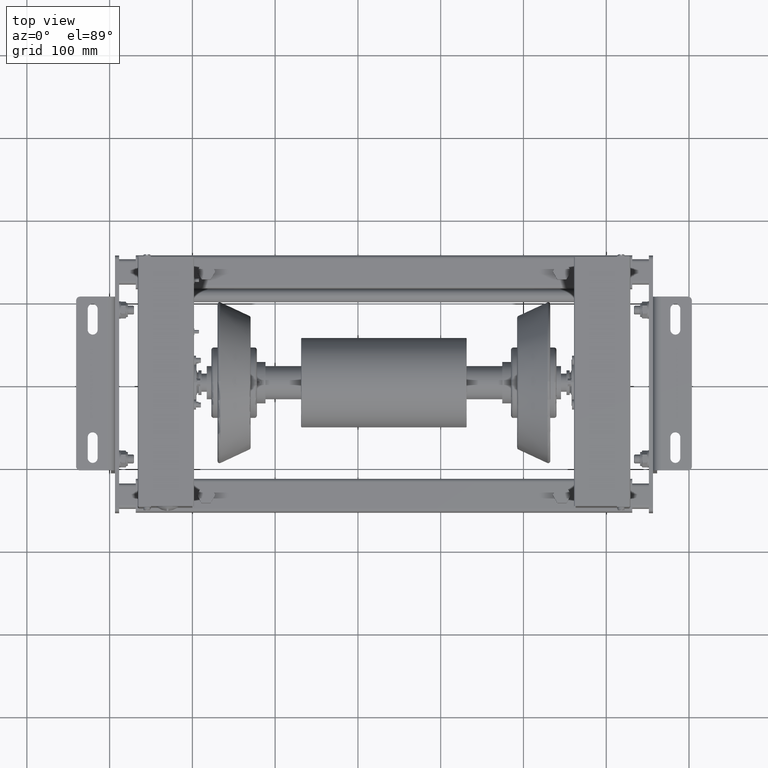
[diagram: clean part render]
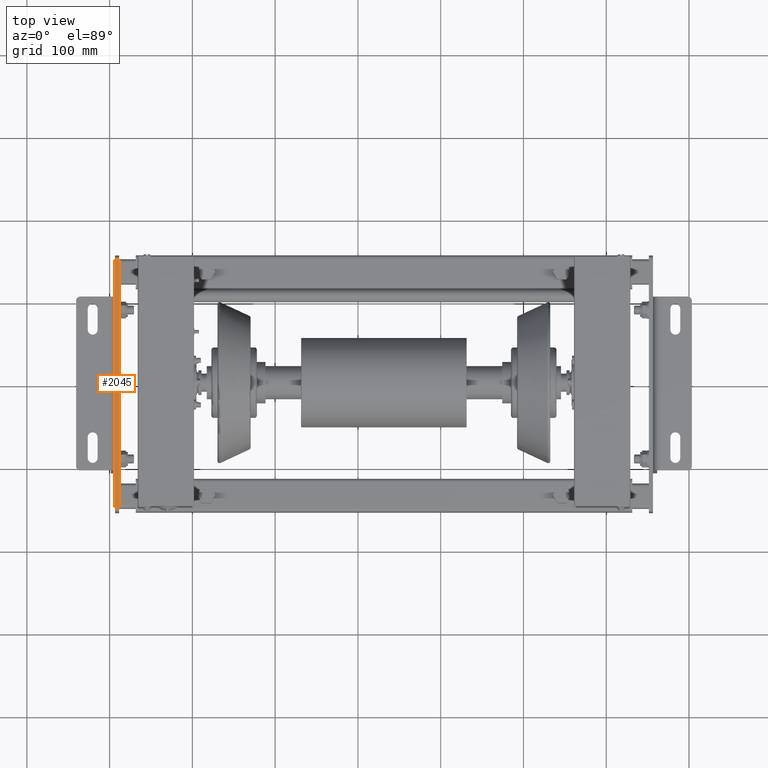
[diagram: same view with one face highlighted and labeled with its STEP entity id]
A machine part, top view. The second image highlights one B-rep face of the part: STEP entity #2045.
In plain terms, the highlighted planar face has unit normal (0, -0, 1).
Its self-contained STEP definition (entity closure, byte-faithful):
#1677=CARTESIAN_POINT('',(150.0,49.999999999999915,2.500000000000000));
#1678=VERTEX_POINT('',#1677);
#1696=CARTESIAN_POINT('',(150.0,49.999999999999915,-2.500000000000000));
#1697=VERTEX_POINT('',#1696);
#1705=CARTESIAN_POINT('',(150.0,49.999999999999915,-2.500000000000000));
#1706=DIRECTION('',(0.0,0.0,1.0));
#1707=VECTOR('',#1706,5.0);
#1708=LINE('',#1705,#1707);
#1709=EDGE_CURVE('',#1697,#1678,#1708,.T.);
#1751=CARTESIAN_POINT('',(-150.000000000000060,49.999999999999858,2.500000000000000));
#1752=VERTEX_POINT('',#1751);
#1753=CARTESIAN_POINT('',(-150.000000000000060,49.999999999999858,2.500000000000000));
#1754=DIRECTION('',(1.0,0.0,0.0));
#1755=VECTOR('',#1754,300.000000000000060);
#1756=LINE('',#1753,#1755);
#1757=EDGE_CURVE('',#1752,#1678,#1756,.T.);
#2003=CARTESIAN_POINT('',(-150.000000000000060,49.999999999999858,-2.500000000000000));
#2004=VERTEX_POINT('',#2003);
#2005=CARTESIAN_POINT('',(-150.000000000000060,49.999999999999858,2.500000000000000));
#2006=DIRECTION('',(0.0,0.0,-1.0));
#2007=VECTOR('',#2006,5.0);
#2008=LINE('',#2005,#2007);
#2009=EDGE_CURVE('',#1752,#2004,#2008,.T.);
#2029=CARTESIAN_POINT('',(-155.000000000000060,49.999999999999943,-2.500000000000000));
#2030=DIRECTION('',(0.0,1.0,0.0));
#2031=DIRECTION('',(0.0,0.0,1.0));
#2032=AXIS2_PLACEMENT_3D('',#2029,#2030,#2031);
#2033=PLANE('',#2032);
#2034=ORIENTED_EDGE('',*,*,#1709,.F.);
#2035=CARTESIAN_POINT('',(150.0,49.999999999999915,-2.500000000000000));
#2036=DIRECTION('',(-1.0,0.0,0.0));
#2037=VECTOR('',#2036,300.000000000000060);
#2038=LINE('',#2035,#2037);
#2039=EDGE_CURVE('',#1697,#2004,#2038,.T.);
#2040=ORIENTED_EDGE('',*,*,#2039,.T.);
#2041=ORIENTED_EDGE('',*,*,#2009,.F.);
#2042=ORIENTED_EDGE('',*,*,#1757,.T.);
#2043=EDGE_LOOP('',(#2034,#2040,#2041,#2042));
#2044=FACE_OUTER_BOUND('',#2043,.T.);
#2045=ADVANCED_FACE('',(#2044),#2033,.T.);